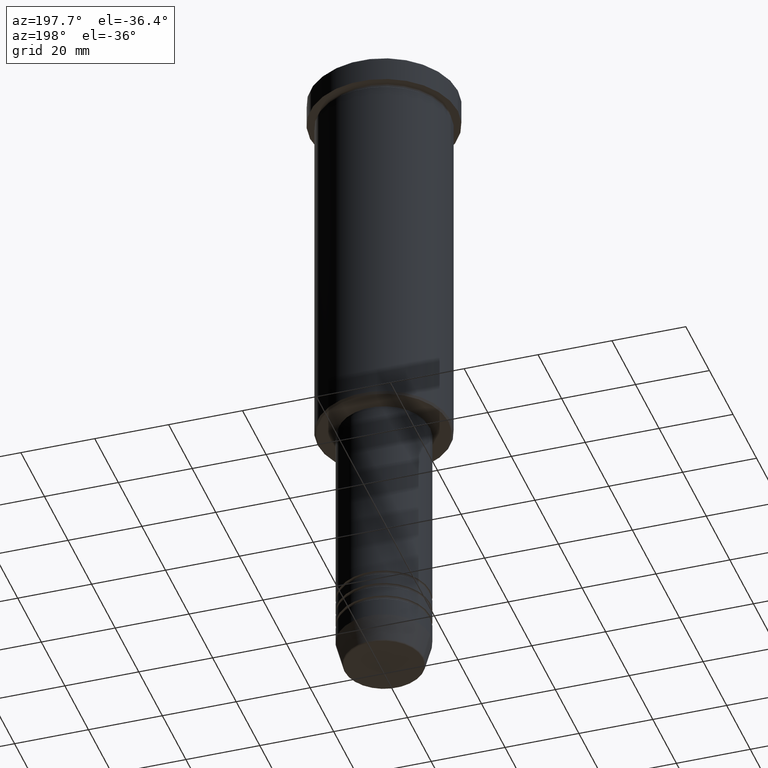
[diagram: clean part render]
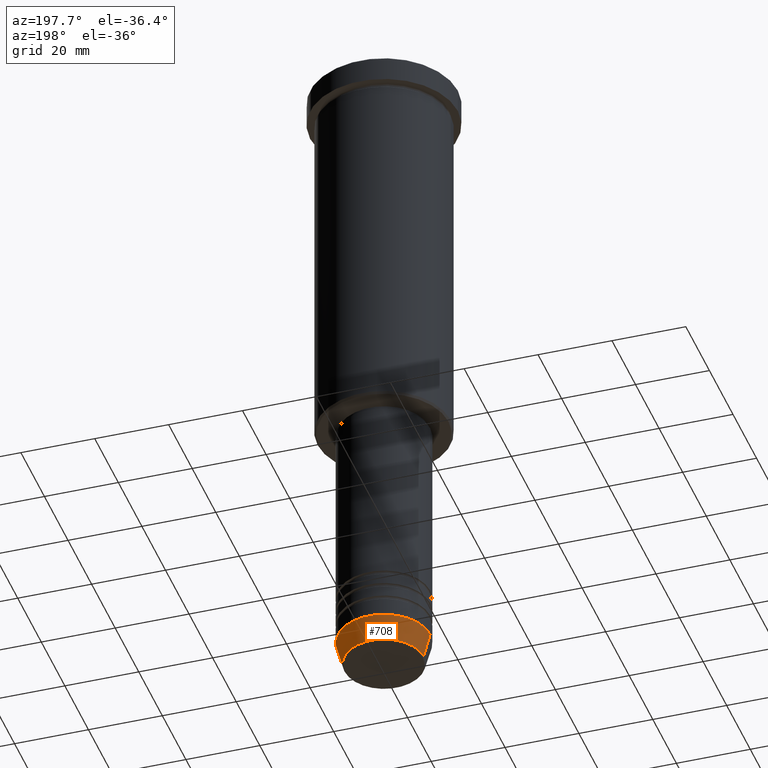
[diagram: same view with one face highlighted and labeled with its STEP entity id]
A machine part, auxiliary view. The second image highlights one B-rep face of the part: STEP entity #708.
In plain terms, the highlighted conical surface has half-angle 15 deg.
Its self-contained STEP definition (entity closure, byte-faithful):
#1 = VERTEX_POINT ( 'NONE', #737 ) ;
#18 = LINE ( 'NONE', #544, #491 ) ;
#45 = CARTESIAN_POINT ( 'NONE',  ( -10.72365507213719127, 1.422038742429750516E-15, -179.6294095225512706 ) ) ;
#70 = DIRECTION ( 'NONE',  ( -0.000000000000000000, -0.000000000000000000, 1.000000000000000000 ) ) ;
#73 = ORIENTED_EDGE ( 'NONE', *, *, #1174, .T. ) ;
#189 = CONICAL_SURFACE ( 'NONE', #863, 12.50000000000000000, 0.2617993877991500740 ) ;
#193 = LINE ( 'NONE', #724, #1039 ) ;
#241 = DIRECTION ( 'NONE',  ( 1.000000000000000000, 0.000000000000000000, 0.000000000000000000 ) ) ;
#284 = CARTESIAN_POINT ( 'NONE',  ( 12.50000000000000000, 0.000000000000000000, -173.0000000000000284 ) ) ;
#318 = ORIENTED_EDGE ( 'NONE', *, *, #911, .T. ) ;
#389 = DIRECTION ( 'NONE',  ( -0.000000000000000000, -0.000000000000000000, 1.000000000000000000 ) ) ;
#407 = EDGE_LOOP ( 'NONE', ( #73, #318, #1052, #1056 ) ) ;
#422 = CARTESIAN_POINT ( 'NONE',  ( 0.000000000000000000, 0.000000000000000000, -173.0000000000000284 ) ) ;
#425 = DIRECTION ( 'NONE',  ( -0.000000000000000000, -0.000000000000000000, 1.000000000000000000 ) ) ;
#491 = VECTOR ( 'NONE', #1006, 1000.000000000000000 ) ;
#543 = EDGE_CURVE ( 'NONE', #826, #1159, #1154, .T. ) ;
#544 = CARTESIAN_POINT ( 'NONE',  ( 12.50000000000000000, 0.000000000000000000, -173.0000000000000284 ) ) ;
#579 = CARTESIAN_POINT ( 'NONE',  ( 0.000000000000000000, 0.000000000000000000, -173.0000000000000284 ) ) ;
#698 = CARTESIAN_POINT ( 'NONE',  ( 0.000000000000000000, 0.000000000000000000, -179.6294095225512706 ) ) ;
#708 = ADVANCED_FACE ( 'NONE', ( #889 ), #189, .T. ) ;
#713 = AXIS2_PLACEMENT_3D ( 'NONE', #698, #425, #1062 ) ;
#719 = DIRECTION ( 'NONE',  ( -0.2588190451025213501, 3.169619151431772337E-17, 0.9659258262890680902 ) ) ;
#724 = CARTESIAN_POINT ( 'NONE',  ( -12.50000000000000000, 1.530808498934191521E-15, -173.0000000000000284 ) ) ;
#737 = CARTESIAN_POINT ( 'NONE',  ( 10.72365507213719127, 0.000000000000000000, -179.6294095225512706 ) ) ;
#826 = VERTEX_POINT ( 'NONE', #284 ) ;
#847 = AXIS2_PLACEMENT_3D ( 'NONE', #579, #389, #856 ) ;
#856 = DIRECTION ( 'NONE',  ( 1.000000000000000000, 0.000000000000000000, 0.000000000000000000 ) ) ;
#863 = AXIS2_PLACEMENT_3D ( 'NONE', #422, #70, #241 ) ;
#886 = CARTESIAN_POINT ( 'NONE',  ( -12.50000000000000000, 1.530808498934191521E-15, -173.0000000000000284 ) ) ;
#889 = FACE_OUTER_BOUND ( 'NONE', #407, .T. ) ;
#911 = EDGE_CURVE ( 'NONE', #1029, #1159, #193, .T. ) ;
#918 = EDGE_CURVE ( 'NONE', #1, #826, #18, .T. ) ;
#1006 = DIRECTION ( 'NONE',  ( 0.2588190451025213501, 0.000000000000000000, 0.9659258262890680902 ) ) ;
#1029 = VERTEX_POINT ( 'NONE', #45 ) ;
#1039 = VECTOR ( 'NONE', #719, 1000.000000000000000 ) ;
#1052 = ORIENTED_EDGE ( 'NONE', *, *, #543, .F. ) ;
#1056 = ORIENTED_EDGE ( 'NONE', *, *, #918, .F. ) ;
#1062 = DIRECTION ( 'NONE',  ( 1.000000000000000000, 0.000000000000000000, 0.000000000000000000 ) ) ;
#1119 = CIRCLE ( 'NONE', #713, 10.72365507213719127 ) ;
#1154 = CIRCLE ( 'NONE', #847, 12.50000000000000000 ) ;
#1159 = VERTEX_POINT ( 'NONE', #886 ) ;
#1174 = EDGE_CURVE ( 'NONE', #1, #1029, #1119, .T. ) ;